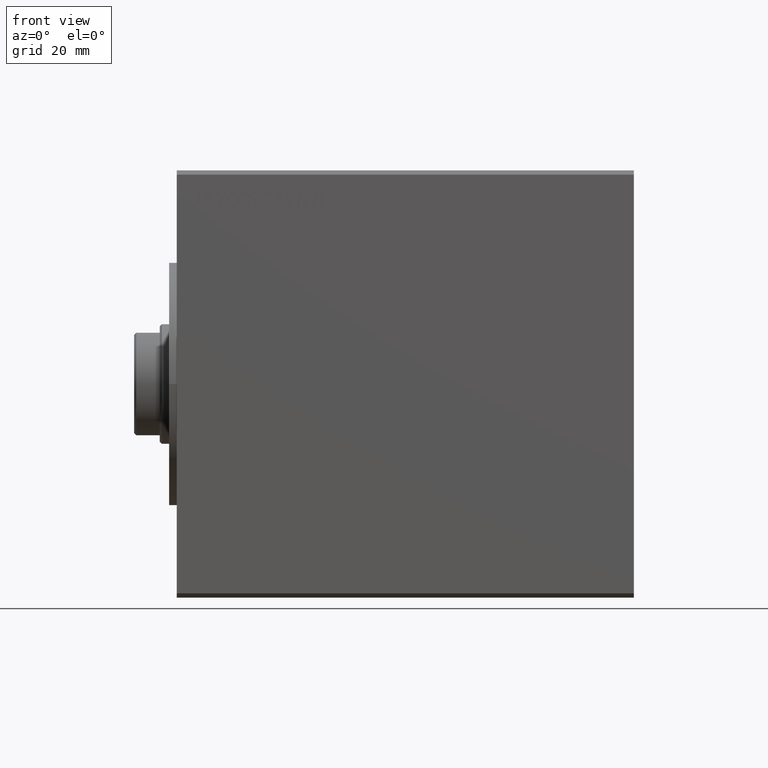
[diagram: clean part render]
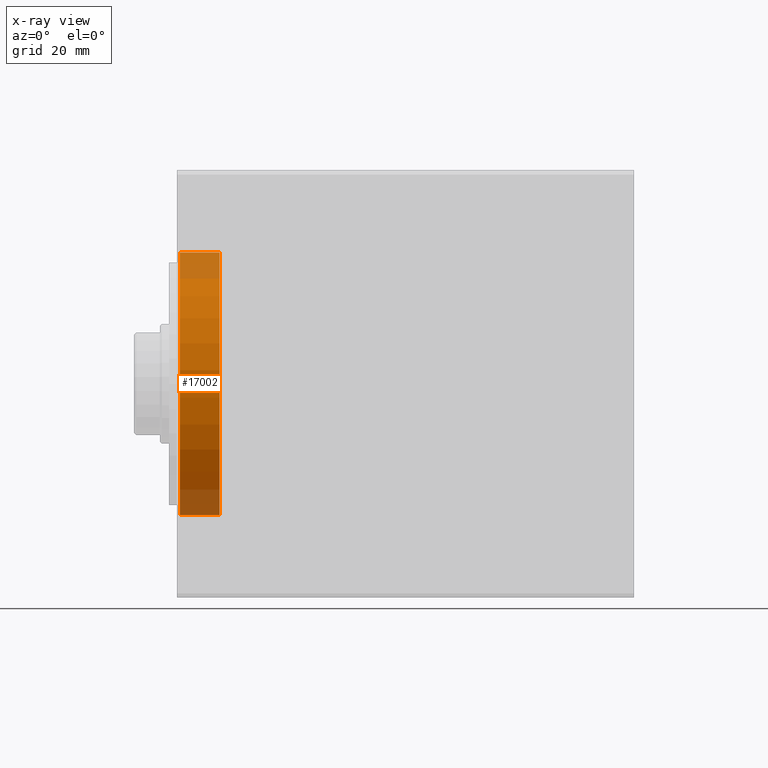
[diagram: x-ray — body ghosted, one internal face saturated and labeled with its STEP entity id]
A machine part, front view, then the same camera in x-ray: the body is ghosted and one INTERNAL B-rep face — a face not visible from any outside direction — is saturated and labeled: STEP entity #17002.
In plain terms, the highlighted cylindrical surface (partial cylindrical patch) has radius 30.75 mm, axis along (-1, -0, -0).
Its self-contained STEP definition (entity closure, byte-faithful):
#1199 = DIRECTION ( 'NONE',  ( 0.000000000000000000, 0.000000000000000000, 1.000000000000000000 ) ) ;
#1418 = DIRECTION ( 'NONE',  ( -1.000000000000000000, -0.000000000000000000, -0.000000000000000000 ) ) ;
#1864 = CYLINDRICAL_SURFACE ( 'NONE', #25508, 30.75000000000000355 ) ;
#2693 = VERTEX_POINT ( 'NONE', #23169 ) ;
#4112 = DIRECTION ( 'NONE',  ( 0.000000000000000000, 0.000000000000000000, 1.000000000000000000 ) ) ;
#4624 = ORIENTED_EDGE ( 'NONE', *, *, #39432, .T. ) ;
#5852 = DIRECTION ( 'NONE',  ( -1.000000000000000000, 0.000000000000000000, 0.000000000000000000 ) ) ;
#6280 = CARTESIAN_POINT ( 'NONE',  ( 0.7000000000000234923, 0.000000000000000000, 0.000000000000000000 ) ) ;
#6359 = DIRECTION ( 'NONE',  ( -1.000000000000000000, -0.000000000000000000, -0.000000000000000000 ) ) ;
#6608 = ORIENTED_EDGE ( 'NONE', *, *, #18313, .T. ) ;
#9695 = DIRECTION ( 'NONE',  ( -1.000000000000000000, 0.000000000000000000, 0.000000000000000000 ) ) ;
#9915 = CIRCLE ( 'NONE', #34076, 30.75000000000000355 ) ;
#10271 = EDGE_LOOP ( 'NONE', ( #29535, #4624, #6608, #37203 ) ) ;
#11324 = CARTESIAN_POINT ( 'NONE',  ( 10.00000000000000000, 3.765788907378111328E-15, -30.75000000000000355 ) ) ;
#11654 = FACE_OUTER_BOUND ( 'NONE', #10271, .T. ) ;
#12317 = CARTESIAN_POINT ( 'NONE',  ( 10.00000000000000000, 0.000000000000000000, 0.000000000000000000 ) ) ;
#15904 = VECTOR ( 'NONE', #6359, 1000.000000000000000 ) ;
#16159 = CARTESIAN_POINT ( 'NONE',  ( 10.00000000000000000, 0.000000000000000000, 0.000000000000000000 ) ) ;
#17002 = ADVANCED_FACE ( 'NONE', ( #11654 ), #1864, .F. ) ;
#17216 = CARTESIAN_POINT ( 'NONE',  ( 0.7000000000000234923, 3.765788907378111328E-15, -30.75000000000000355 ) ) ;
#18313 = EDGE_CURVE ( 'NONE', #25257, #37430, #9915, .T. ) ;
#20534 = EDGE_CURVE ( 'NONE', #30419, #2693, #41813, .T. ) ;
#23169 = CARTESIAN_POINT ( 'NONE',  ( 10.00000000000000000, 0.000000000000000000, 30.75000000000000355 ) ) ;
#25257 = VERTEX_POINT ( 'NONE', #17216 ) ;
#25508 = AXIS2_PLACEMENT_3D ( 'NONE', #12317, #1418, #1199 ) ;
#26826 = CARTESIAN_POINT ( 'NONE',  ( 10.00000000000000000, 0.000000000000000000, 30.75000000000000355 ) ) ;
#27511 = LINE ( 'NONE', #40642, #31452 ) ;
#27732 = DIRECTION ( 'NONE',  ( -1.000000000000000000, -0.000000000000000000, -0.000000000000000000 ) ) ;
#29535 = ORIENTED_EDGE ( 'NONE', *, *, #20534, .F. ) ;
#30419 = VERTEX_POINT ( 'NONE', #11324 ) ;
#31037 = LINE ( 'NONE', #26826, #15904 ) ;
#31452 = VECTOR ( 'NONE', #27732, 1000.000000000000000 ) ;
#33430 = DIRECTION ( 'NONE',  ( 0.000000000000000000, 0.000000000000000000, -1.000000000000000000 ) ) ;
#34076 = AXIS2_PLACEMENT_3D ( 'NONE', #6280, #5852, #33430 ) ;
#37203 = ORIENTED_EDGE ( 'NONE', *, *, #42197, .F. ) ;
#37430 = VERTEX_POINT ( 'NONE', #42630 ) ;
#39432 = EDGE_CURVE ( 'NONE', #30419, #25257, #27511, .T. ) ;
#40642 = CARTESIAN_POINT ( 'NONE',  ( 10.00000000000000000, 3.765788907378111328E-15, -30.75000000000000355 ) ) ;
#41813 = CIRCLE ( 'NONE', #43953, 30.75000000000000355 ) ;
#42197 = EDGE_CURVE ( 'NONE', #2693, #37430, #31037, .T. ) ;
#42630 = CARTESIAN_POINT ( 'NONE',  ( 0.7000000000000234923, 0.000000000000000000, 30.75000000000000355 ) ) ;
#43953 = AXIS2_PLACEMENT_3D ( 'NONE', #16159, #9695, #4112 ) ;